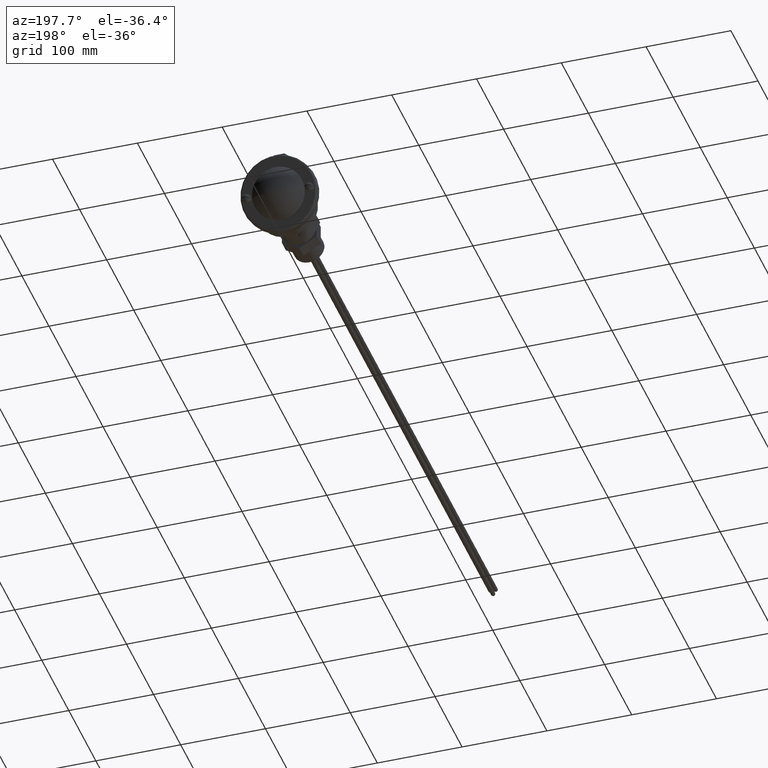
[diagram: clean part render]
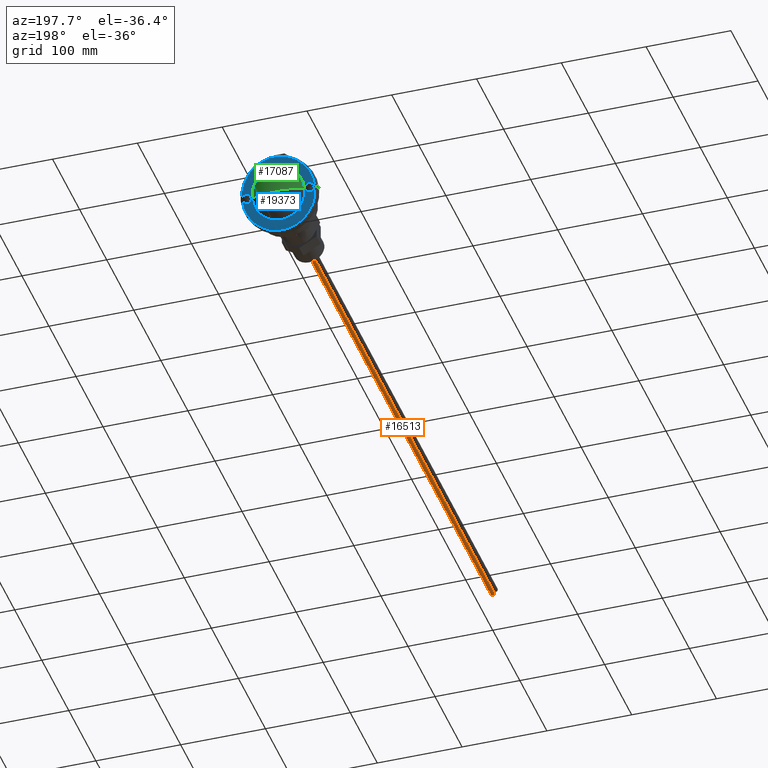
[diagram: same view with three faces highlighted in distinct colors, each labeled with its STEP entity id]
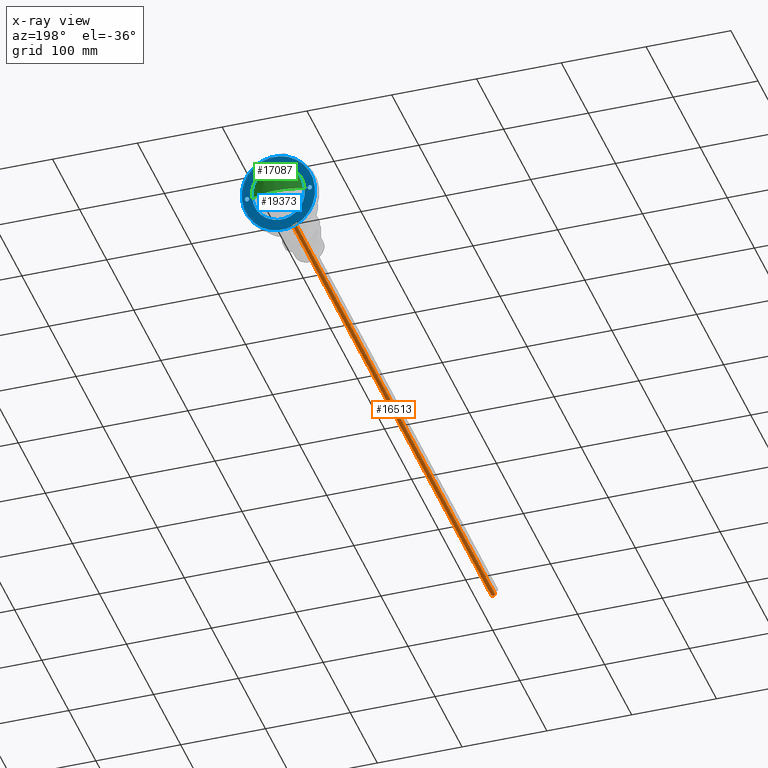
[diagram: x-ray of the same camera — body ghosted, the three highlighted faces saturated]
A machine part, auxiliary view with three faces highlighted in distinct colors.
The next image is the same camera in x-ray (body ghosted, the three faces saturated) — at least one of them is partly hidden behind the body in this view.
Their STEP definitions:

[orange] entity #16513 — the highlighted cylindrical surface (edge-blend (fillet) strip) has radius 2.5 mm, axis along (0, -1, -0).
#343 = VERTEX_POINT ( 'NONE', #10100 ) ;
#537 = AXIS2_PLACEMENT_3D ( 'NONE', #1055, #7051, #16259 ) ;
#1055 = CARTESIAN_POINT ( 'NONE',  ( 0.000000000000000000, 0.000000000000000000, 0.000000000000000000 ) ) ;
#1135 = LINE ( 'NONE', #4009, #17254 ) ;
#1321 = AXIS2_PLACEMENT_3D ( 'NONE', #13085, #19075, #16324 ) ;
#1412 = LINE ( 'NONE', #1505, #15112 ) ;
#1490 = VERTEX_POINT ( 'NONE', #12404 ) ;
#1505 = CARTESIAN_POINT ( 'NONE',  ( 0.000000000000000000, 737.5000000000000000, -2.500000000000000000 ) ) ;
#1841 = EDGE_CURVE ( 'NONE', #4398, #7277, #2120, .T. ) ;
#2096 = ORIENTED_EDGE ( 'NONE', *, *, #17487, .F. ) ;
#2120 = CIRCLE ( 'NONE', #537, 2.500000000000000000 ) ;
#2146 = ORIENTED_EDGE ( 'NONE', *, *, #5932, .F. ) ;
#2233 = ORIENTED_EDGE ( 'NONE', *, *, #1841, .T. ) ;
#2259 = DIRECTION ( 'NONE',  ( -0.000000000000000000, -1.000000000000000000, -0.000000000000000000 ) ) ;
#2646 = FACE_OUTER_BOUND ( 'NONE', #12383, .T. ) ;
#3313 = CARTESIAN_POINT ( 'NONE',  ( -2.500000000000000000, 0.000000000000000000, 0.000000000000000000 ) ) ;
#3726 = ORIENTED_EDGE ( 'NONE', *, *, #17394, .T. ) ;
#4009 = CARTESIAN_POINT ( 'NONE',  ( 3.061616997868383141E-16, 737.5000000000000000, 2.500000000000000000 ) ) ;
#4039 = DIRECTION ( 'NONE',  ( 0.000000000000000000, 0.000000000000000000, -1.000000000000000000 ) ) ;
#4157 = CARTESIAN_POINT ( 'NONE',  ( 3.061616997868383141E-16, 737.5000000000000000, 2.500000000000000000 ) ) ;
#4398 = VERTEX_POINT ( 'NONE', #10519 ) ;
#4840 = DIRECTION ( 'NONE',  ( -0.000000000000000000, 1.000000000000000000, -0.000000000000000000 ) ) ;
#5932 = EDGE_CURVE ( 'NONE', #14520, #1490, #1135, .T. ) ;
#6033 = CIRCLE ( 'NONE', #1321, 2.500000000000000000 ) ;
#7051 = DIRECTION ( 'NONE',  ( -0.000000000000000000, 1.000000000000000000, -0.000000000000000000 ) ) ;
#7277 = VERTEX_POINT ( 'NONE', #3313 ) ;
#7339 = ORIENTED_EDGE ( 'NONE', *, *, #8119, .T. ) ;
#7405 = DIRECTION ( 'NONE',  ( -0.000000000000000000, -1.000000000000000000, -0.000000000000000000 ) ) ;
#7417 = DIRECTION ( 'NONE',  ( -0.000000000000000000, -1.000000000000000000, -0.000000000000000000 ) ) ;
#7769 = CARTESIAN_POINT ( 'NONE',  ( 0.000000000000000000, 0.000000000000000000, 0.000000000000000000 ) ) ;
#8119 = EDGE_CURVE ( 'NONE', #7277, #1490, #18663, .T. ) ;
#8321 = AXIS2_PLACEMENT_3D ( 'NONE', #7769, #4840, #10812 ) ;
#8637 = CYLINDRICAL_SURFACE ( 'NONE', #15726, 2.500000000000000000 ) ;
#10100 = CARTESIAN_POINT ( 'NONE',  ( 0.000000000000000000, 737.5000000000000000, -2.500000000000000000 ) ) ;
#10519 = CARTESIAN_POINT ( 'NONE',  ( 0.000000000000000000, 0.000000000000000000, -2.500000000000000000 ) ) ;
#10812 = DIRECTION ( 'NONE',  ( 0.000000000000000000, 0.000000000000000000, 1.000000000000000000 ) ) ;
#12383 = EDGE_LOOP ( 'NONE', ( #2146, #2096, #3726, #2233, #7339 ) ) ;
#12404 = CARTESIAN_POINT ( 'NONE',  ( 3.061616997868383141E-16, 0.000000000000000000, 2.500000000000000000 ) ) ;
#12938 = CARTESIAN_POINT ( 'NONE',  ( 0.000000000000000000, 737.5000000000000000, 0.000000000000000000 ) ) ;
#13085 = CARTESIAN_POINT ( 'NONE',  ( 0.000000000000000000, 737.5000000000000000, 0.000000000000000000 ) ) ;
#14520 = VERTEX_POINT ( 'NONE', #4157 ) ;
#15112 = VECTOR ( 'NONE', #7405, 1000.000000000000000 ) ;
#15726 = AXIS2_PLACEMENT_3D ( 'NONE', #12938, #2259, #4039 ) ;
#16259 = DIRECTION ( 'NONE',  ( 0.000000000000000000, 0.000000000000000000, 1.000000000000000000 ) ) ;
#16324 = DIRECTION ( 'NONE',  ( 0.000000000000000000, 0.000000000000000000, 1.000000000000000000 ) ) ;
#16513 = ADVANCED_FACE ( 'NONE', ( #2646 ), #8637, .T. ) ;
#17254 = VECTOR ( 'NONE', #7417, 1000.000000000000000 ) ;
#17394 = EDGE_CURVE ( 'NONE', #343, #4398, #1412, .T. ) ;
#17487 = EDGE_CURVE ( 'NONE', #343, #14520, #6033, .T. ) ;
#18663 = CIRCLE ( 'NONE', #8321, 2.500000000000000000 ) ;
#19075 = DIRECTION ( 'NONE',  ( 0.000000000000000000, 1.000000000000000000, 0.000000000000000000 ) ) ;

[blue] entity #19373 — the highlighted planar face has unit normal (0, 0.9347, -0.3553).
#69 = EDGE_LOOP ( 'NONE', ( #5265, #11014 ) ) ;
#206 = DIRECTION ( 'NONE',  ( -1.000000000000000000, 0.000000000000000000, 0.000000000000000000 ) ) ;
#232 = CIRCLE ( 'NONE', #9340, 2.499999999999974243 ) ;
#384 = VERTEX_POINT ( 'NONE', #14984 ) ;
#1078 = PLANE ( 'NONE',  #5978 ) ;
#1372 = AXIS2_PLACEMENT_3D ( 'NONE', #6955, #8535, #18814 ) ;
#1479 = DIRECTION ( 'NONE',  ( -1.000000000000000000, 0.000000000000000000, 0.000000000000000000 ) ) ;
#2029 = ORIENTED_EDGE ( 'NONE', *, *, #12104, .F. ) ;
#2637 = AXIS2_PLACEMENT_3D ( 'NONE', #6586, #16702, #206 ) ;
#2779 = CIRCLE ( 'NONE', #10621, 31.00000000000000000 ) ;
#2851 = CARTESIAN_POINT ( 'NONE',  ( -64.23863331653500097, 0.000000000000000000, -10.00000000000000178 ) ) ;
#2976 = DIRECTION ( 'NONE',  ( -0.000000000000000000, -0.000000000000000000, -1.000000000000000000 ) ) ;
#3205 = CIRCLE ( 'NONE', #11955, 2.499999999999988454 ) ;
#3260 = CARTESIAN_POINT ( 'NONE',  ( -109.2386333165350010, 0.000000000000000000, -10.00000000000000000 ) ) ;
#3968 = DIRECTION ( 'NONE',  ( 0.000000000000000000, 0.000000000000000000, 1.000000000000000000 ) ) ;
#4008 = EDGE_LOOP ( 'NONE', ( #7918, #18861 ) ) ;
#4038 = CARTESIAN_POINT ( 'NONE',  ( -74.73863331653508624, -4.225031457058372867E-15, -10.00000000000000178 ) ) ;
#4145 = CIRCLE ( 'NONE', #7262, 31.00000000000000000 ) ;
#4256 = CARTESIAN_POINT ( 'NONE',  ( -109.2386333165350010, 0.000000000000000000, -10.00000000000000000 ) ) ;
#4303 = VERTEX_POINT ( 'NONE', #5409 ) ;
#4637 = EDGE_CURVE ( 'NONE', #15641, #10939, #18623, .T. ) ;
#5265 = ORIENTED_EDGE ( 'NONE', *, *, #16753, .F. ) ;
#5332 = ORIENTED_EDGE ( 'NONE', *, *, #9046, .T. ) ;
#5409 = CARTESIAN_POINT ( 'NONE',  ( -140.2386333165348731, 3.796405077356781704E-15, -9.999999999999998224 ) ) ;
#5688 = CARTESIAN_POINT ( 'NONE',  ( -152.2386333165349868, 0.000000000000000000, -10.00000000000000178 ) ) ;
#5978 = AXIS2_PLACEMENT_3D ( 'NONE', #2851, #19024, #19317 ) ;
#6517 = VERTEX_POINT ( 'NONE', #12753 ) ;
#6586 = CARTESIAN_POINT ( 'NONE',  ( -109.2386333165350010, 0.000000000000000000, -10.00000000000000178 ) ) ;
#6683 = DIRECTION ( 'NONE',  ( -1.000000000000000000, 0.000000000000000000, 0.000000000000000000 ) ) ;
#6684 = EDGE_CURVE ( 'NONE', #4303, #6517, #4145, .T. ) ;
#6955 = CARTESIAN_POINT ( 'NONE',  ( -72.23863331653510045, -4.531193156845209948E-15, -10.00000000000000178 ) ) ;
#7262 = AXIS2_PLACEMENT_3D ( 'NONE', #3260, #9038, #15019 ) ;
#7359 = FACE_OUTER_BOUND ( 'NONE', #4008, .T. ) ;
#7839 = CARTESIAN_POINT ( 'NONE',  ( -69.73863331653511466, -4.531193156845209948E-15, -10.00000000000000178 ) ) ;
#7918 = ORIENTED_EDGE ( 'NONE', *, *, #17824, .T. ) ;
#8290 = VERTEX_POINT ( 'NONE', #5688 ) ;
#8341 = CARTESIAN_POINT ( 'NONE',  ( -148.7386333165349868, 3.061616997868385606E-16, -10.00000000000000178 ) ) ;
#8535 = DIRECTION ( 'NONE',  ( -0.000000000000000000, -0.000000000000000000, -1.000000000000000000 ) ) ;
#8550 = AXIS2_PLACEMENT_3D ( 'NONE', #16403, #2976, #1479 ) ;
#8620 = CARTESIAN_POINT ( 'NONE',  ( -146.2386333165349868, 0.000000000000000000, -10.00000000000000178 ) ) ;
#8933 = FACE_BOUND ( 'NONE', #17473, .T. ) ;
#9038 = DIRECTION ( 'NONE',  ( 0.000000000000000000, 0.000000000000000000, 1.000000000000000000 ) ) ;
#9046 = EDGE_CURVE ( 'NONE', #6517, #4303, #2779, .T. ) ;
#9212 = CIRCLE ( 'NONE', #2637, 42.99999999999998579 ) ;
#9340 = AXIS2_PLACEMENT_3D ( 'NONE', #10995, #16988, #6683 ) ;
#10315 = FACE_BOUND ( 'NONE', #69, .T. ) ;
#10428 = EDGE_LOOP ( 'NONE', ( #16751, #2029 ) ) ;
#10618 = EDGE_CURVE ( 'NONE', #384, #14871, #232, .T. ) ;
#10621 = AXIS2_PLACEMENT_3D ( 'NONE', #4256, #3968, #12959 ) ;
#10939 = VERTEX_POINT ( 'NONE', #7839 ) ;
#10995 = CARTESIAN_POINT ( 'NONE',  ( -146.2386333165349868, 0.000000000000000000, -10.00000000000000178 ) ) ;
#11014 = ORIENTED_EDGE ( 'NONE', *, *, #4637, .F. ) ;
#11955 = AXIS2_PLACEMENT_3D ( 'NONE', #14104, #12524, #16952 ) ;
#12104 = EDGE_CURVE ( 'NONE', #14871, #384, #17969, .T. ) ;
#12524 = DIRECTION ( 'NONE',  ( -0.000000000000000000, -0.000000000000000000, -1.000000000000000000 ) ) ;
#12705 = ORIENTED_EDGE ( 'NONE', *, *, #6684, .T. ) ;
#12753 = CARTESIAN_POINT ( 'NONE',  ( -78.23863331653510045, 0.000000000000000000, -9.999999999999998224 ) ) ;
#12959 = DIRECTION ( 'NONE',  ( 1.000000000000000000, 0.000000000000000000, 0.000000000000000000 ) ) ;
#13019 = DIRECTION ( 'NONE',  ( -1.000000000000000000, 0.000000000000000000, 0.000000000000000000 ) ) ;
#13222 = EDGE_CURVE ( 'NONE', #14822, #8290, #9212, .T. ) ;
#13345 = FACE_BOUND ( 'NONE', #10428, .T. ) ;
#14104 = CARTESIAN_POINT ( 'NONE',  ( -72.23863331653510045, -4.531193156845209948E-15, -10.00000000000000178 ) ) ;
#14124 = CARTESIAN_POINT ( 'NONE',  ( -66.23863331653500097, 5.388445916248354407E-15, -10.00000000000000178 ) ) ;
#14814 = AXIS2_PLACEMENT_3D ( 'NONE', #8620, #17541, #13019 ) ;
#14822 = VERTEX_POINT ( 'NONE', #14124 ) ;
#14871 = VERTEX_POINT ( 'NONE', #8341 ) ;
#14984 = CARTESIAN_POINT ( 'NONE',  ( -143.7386333165350152, 0.000000000000000000, -10.00000000000000178 ) ) ;
#15019 = DIRECTION ( 'NONE',  ( 1.000000000000000000, 0.000000000000000000, 0.000000000000000000 ) ) ;
#15641 = VERTEX_POINT ( 'NONE', #4038 ) ;
#16403 = CARTESIAN_POINT ( 'NONE',  ( -109.2386333165350010, 0.000000000000000000, -10.00000000000000178 ) ) ;
#16702 = DIRECTION ( 'NONE',  ( -0.000000000000000000, -0.000000000000000000, -1.000000000000000000 ) ) ;
#16751 = ORIENTED_EDGE ( 'NONE', *, *, #10618, .F. ) ;
#16753 = EDGE_CURVE ( 'NONE', #10939, #15641, #3205, .T. ) ;
#16952 = DIRECTION ( 'NONE',  ( -1.000000000000000000, 0.000000000000000000, 0.000000000000000000 ) ) ;
#16988 = DIRECTION ( 'NONE',  ( -0.000000000000000000, -0.000000000000000000, -1.000000000000000000 ) ) ;
#17473 = EDGE_LOOP ( 'NONE', ( #5332, #12705 ) ) ;
#17541 = DIRECTION ( 'NONE',  ( -0.000000000000000000, -0.000000000000000000, -1.000000000000000000 ) ) ;
#17824 = EDGE_CURVE ( 'NONE', #8290, #14822, #17946, .T. ) ;
#17946 = CIRCLE ( 'NONE', #8550, 42.99999999999998579 ) ;
#17969 = CIRCLE ( 'NONE', #14814, 2.499999999999974243 ) ;
#18623 = CIRCLE ( 'NONE', #1372, 2.499999999999988454 ) ;
#18814 = DIRECTION ( 'NONE',  ( -1.000000000000000000, 0.000000000000000000, 0.000000000000000000 ) ) ;
#18861 = ORIENTED_EDGE ( 'NONE', *, *, #13222, .T. ) ;
#19024 = DIRECTION ( 'NONE',  ( -0.000000000000000000, 0.000000000000000000, -1.000000000000000000 ) ) ;
#19317 = DIRECTION ( 'NONE',  ( -1.000000000000000000, 0.000000000000000000, 0.000000000000000000 ) ) ;
#19373 = ADVANCED_FACE ( 'NONE', ( #7359, #13345, #10315, #8933 ), #1078, .T. ) ;

[green] entity #17087 — the highlighted spherical surface has radius 45 mm.
#1251 = ORIENTED_EDGE ( 'NONE', *, *, #9046, .F. ) ;
#1354 = ORIENTED_EDGE ( 'NONE', *, *, #10760, .T. ) ;
#2020 = DIRECTION ( 'NONE',  ( 1.000000000000000000, 0.000000000000000000, 0.000000000000000000 ) ) ;
#2779 = CIRCLE ( 'NONE', #10621, 31.00000000000000000 ) ;
#3136 = CARTESIAN_POINT ( 'NONE',  ( -109.2386333165350010, 0.000000000000000000, -22.38098713939954720 ) ) ;
#3968 = DIRECTION ( 'NONE',  ( 0.000000000000000000, 0.000000000000000000, 1.000000000000000000 ) ) ;
#4256 = CARTESIAN_POINT ( 'NONE',  ( -109.2386333165350010, 0.000000000000000000, -10.00000000000000000 ) ) ;
#4303 = VERTEX_POINT ( 'NONE', #5409 ) ;
#4341 = CIRCLE ( 'NONE', #18417, 45.00000000000014921 ) ;
#4795 = SPHERICAL_SURFACE ( 'NONE', #18854, 45.00000000000014921 ) ;
#4979 = CARTESIAN_POINT ( 'NONE',  ( -109.2386333165350010, 0.000000000000000000, 22.61901286060060201 ) ) ;
#5409 = CARTESIAN_POINT ( 'NONE',  ( -140.2386333165348731, 3.796405077356781704E-15, -9.999999999999998224 ) ) ;
#6517 = VERTEX_POINT ( 'NONE', #12753 ) ;
#8005 = DIRECTION ( 'NONE',  ( 0.000000000000000000, 0.000000000000000000, -1.000000000000000000 ) ) ;
#9046 = EDGE_CURVE ( 'NONE', #6517, #4303, #2779, .T. ) ;
#9181 = DIRECTION ( 'NONE',  ( 0.000000000000000000, -1.000000000000000000, 0.000000000000000000 ) ) ;
#9899 = EDGE_LOOP ( 'NONE', ( #17124, #1354, #1251 ) ) ;
#10621 = AXIS2_PLACEMENT_3D ( 'NONE', #4256, #3968, #12959 ) ;
#10654 = CARTESIAN_POINT ( 'NONE',  ( -109.2386333165350010, 0.000000000000000000, 22.61901286060060201 ) ) ;
#10760 = EDGE_CURVE ( 'NONE', #15067, #4303, #4341, .T. ) ;
#12119 = FACE_OUTER_BOUND ( 'NONE', #9899, .T. ) ;
#12734 = EDGE_CURVE ( 'NONE', #15067, #6517, #16714, .T. ) ;
#12753 = CARTESIAN_POINT ( 'NONE',  ( -78.23863331653510045, 0.000000000000000000, -9.999999999999998224 ) ) ;
#12959 = DIRECTION ( 'NONE',  ( 1.000000000000000000, 0.000000000000000000, 0.000000000000000000 ) ) ;
#13268 = AXIS2_PLACEMENT_3D ( 'NONE', #10654, #9181, #8005 ) ;
#14705 = CARTESIAN_POINT ( 'NONE',  ( -109.2386333165350010, 0.000000000000000000, 22.61901286060060201 ) ) ;
#15067 = VERTEX_POINT ( 'NONE', #3136 ) ;
#16571 = DIRECTION ( 'NONE',  ( 1.224646799147353207E-16, 1.000000000000000000, -0.000000000000000000 ) ) ;
#16714 = CIRCLE ( 'NONE', #13268, 45.00000000000014921 ) ;
#17034 = DIRECTION ( 'NONE',  ( 0.000000000000000000, 1.000000000000000000, 0.000000000000000000 ) ) ;
#17087 = ADVANCED_FACE ( 'NONE', ( #12119 ), #4795, .T. ) ;
#17124 = ORIENTED_EDGE ( 'NONE', *, *, #12734, .F. ) ;
#18145 = DIRECTION ( 'NONE',  ( -1.000000000000000000, 1.224646799147353207E-16, 0.000000000000000000 ) ) ;
#18417 = AXIS2_PLACEMENT_3D ( 'NONE', #14705, #16571, #18145 ) ;
#18854 = AXIS2_PLACEMENT_3D ( 'NONE', #4979, #17034, #2020 ) ;